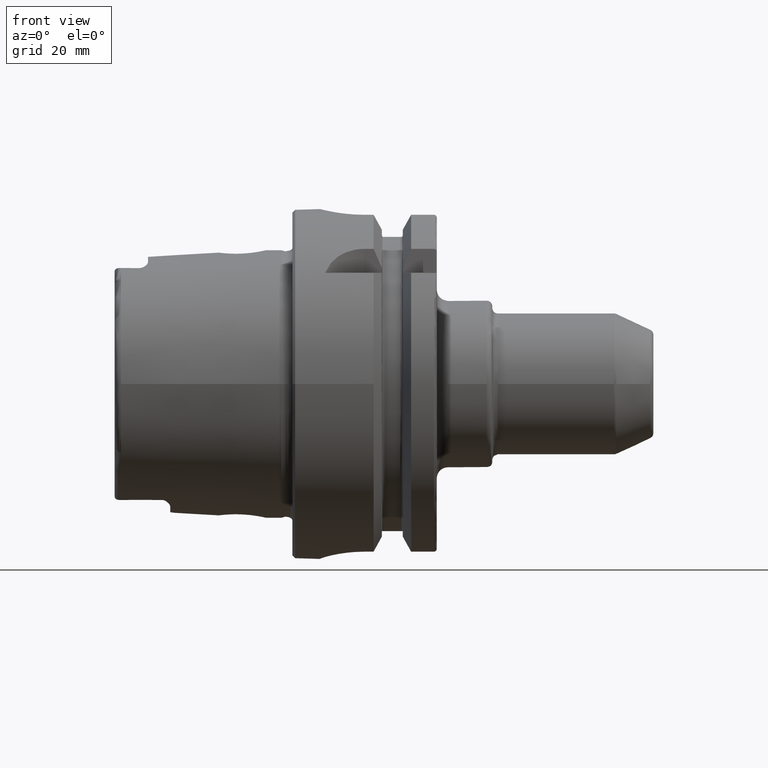
[diagram: clean part render]
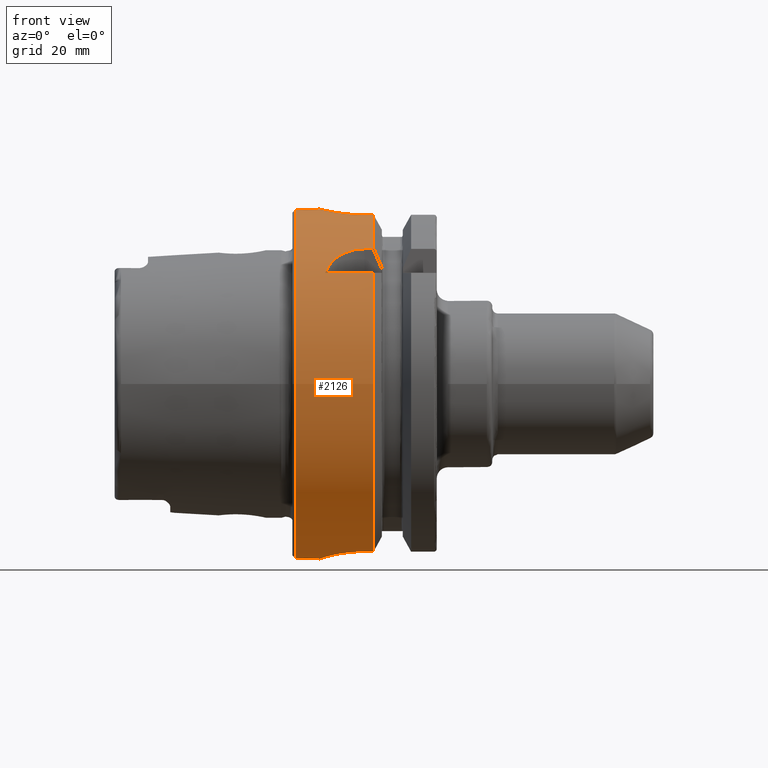
[diagram: same view with one face highlighted and labeled with its STEP entity id]
A machine part, front view. The second image highlights one B-rep face of the part: STEP entity #2126.
In plain terms, the highlighted cylindrical surface (bore or boss wall) has radius 31.5 mm, axis along (1, 0, 0).
Its self-contained STEP definition (entity closure, byte-faithful):
#66=B_SPLINE_CURVE_WITH_KNOTS('',3,(#4161,#4162,#4163,#4164,#4165,#4166,
#4167,#4168,#4169,#4170,#4171,#4172,#4173,#4174,#4175,#4176,#4177,#4178,
#4179,#4180,#4181,#4182,#4183,#4184,#4185,#4186),.UNSPECIFIED.,.F.,.F.,
(4,2,2,2,2,2,2,2,2,2,2,2,4),(0.,0.188688694287612,0.377377388575223,0.56606194688798,
0.754746505200737,0.943431063513494,1.13211562182625,1.32080431611386,1.50949301040147,
1.69818170468909,1.8868703989767,2.07555495728945,2.26423951560221),
 .UNSPECIFIED.);
#67=B_SPLINE_CURVE_WITH_KNOTS('',3,(#4187,#4188,#4189,#4190,#4191,#4192,
#4193,#4194,#4195,#4196),.UNSPECIFIED.,.F.,.F.,(4,2,2,2,4),(2.26423951560221,
2.45292407391497,2.64160863222773,2.83029732651534,3.01898602080295),
 .UNSPECIFIED.);
#68=B_SPLINE_CURVE_WITH_KNOTS('',3,(#4205,#4206,#4207,#4208,#4209,#4210,
#4211,#4212,#4213,#4214,#4215,#4216),.UNSPECIFIED.,.F.,.F.,(4,2,2,2,2,4),
(1.1085154204615,1.31979218709236,1.52798350480179,1.73617482251122,1.90421770126337,
2.07226058001552),.UNSPECIFIED.);
#71=B_SPLINE_CURVE_WITH_KNOTS('',3,(#4284,#4285,#4286,#4287,#4288,#4289,
#4290,#4291,#4292,#4293,#4294,#4295,#4296,#4297,#4298,#4299,#4300,#4301),
 .UNSPECIFIED.,.F.,.F.,(4,2,2,2,2,2,2,2,4),(0.,0.302805879979318,0.605611759958635,
0.908372461246501,1.21113316253437,1.51389386382223,1.8166545651101,2.11946044508942,
2.42226632506874),.UNSPECIFIED.);
#72=B_SPLINE_CURVE_WITH_KNOTS('',3,(#4309,#4310,#4311,#4312,#4313,#4314,
#4315,#4316,#4317,#4318),.UNSPECIFIED.,.F.,.F.,(4,2,2,2,4),(0.,0.30293011231322,
0.605860224626439,0.90976031392917,1.2136604032319),.UNSPECIFIED.);
#73=B_SPLINE_CURVE_WITH_KNOTS('',3,(#4322,#4323,#4324,#4325,#4326,#4327,
#4328,#4329,#4330,#4331),.UNSPECIFIED.,.F.,.F.,(4,2,2,2,4),(1.20927420824097,
1.5131742975437,1.81707438684643,2.12000449915965,2.42293461147287),
 .UNSPECIFIED.);
#108=FACE_BOUND('',#412,.T.);
#207=CYLINDRICAL_SURFACE('',#2341,31.5);
#276=FACE_OUTER_BOUND('',#411,.T.);
#411=EDGE_LOOP('',(#1669,#1670,#1671,#1672,#1673,#1674,#1675,#1676,#1677,
#1678,#1679,#1680,#1681,#1682,#1683,#1684,#1685,#1686));
#412=EDGE_LOOP('',(#1687,#1688));
#548=LINE('',#4247,#658);
#552=LINE('',#4277,#662);
#553=LINE('',#4282,#663);
#554=LINE('',#4303,#664);
#555=LINE('',#4307,#665);
#556=LINE('',#4333,#666);
#557=LINE('',#4337,#667);
#658=VECTOR('',#2774,10.);
#662=VECTOR('',#2782,10.);
#663=VECTOR('',#2787,10.);
#664=VECTOR('',#2788,10.);
#665=VECTOR('',#2791,10.);
#666=VECTOR('',#2794,10.);
#667=VECTOR('',#2797,31.5);
#777=CIRCLE('',#2342,31.5);
#778=CIRCLE('',#2343,31.5);
#779=CIRCLE('',#2344,31.5);
#780=CIRCLE('',#2345,31.5);
#781=CIRCLE('',#2346,31.5);
#782=CIRCLE('',#2347,31.5);
#963=VERTEX_POINT('',#4158);
#964=VERTEX_POINT('',#4160);
#966=VERTEX_POINT('',#4203);
#967=VERTEX_POINT('',#4204);
#975=VERTEX_POINT('',#4246);
#980=VERTEX_POINT('',#4273);
#981=VERTEX_POINT('',#4279);
#982=VERTEX_POINT('',#4281);
#983=VERTEX_POINT('',#4283);
#984=VERTEX_POINT('',#4302);
#985=VERTEX_POINT('',#4304);
#986=VERTEX_POINT('',#4306);
#987=VERTEX_POINT('',#4308);
#988=VERTEX_POINT('',#4319);
#989=VERTEX_POINT('',#4321);
#990=VERTEX_POINT('',#4332);
#991=VERTEX_POINT('',#4334);
#992=VERTEX_POINT('',#4336);
#1218=EDGE_CURVE('',#964,#963,#66,.T.);
#1219=EDGE_CURVE('',#963,#964,#67,.T.);
#1222=EDGE_CURVE('',#966,#967,#68,.T.);
#1232=EDGE_CURVE('',#975,#966,#548,.T.);
#1240=EDGE_CURVE('',#967,#980,#552,.T.);
#1241=EDGE_CURVE('',#981,#980,#777,.T.);
#1242=EDGE_CURVE('',#981,#982,#553,.T.);
#1243=EDGE_CURVE('',#982,#983,#71,.T.);
#1244=EDGE_CURVE('',#983,#984,#554,.T.);
#1245=EDGE_CURVE('',#985,#984,#778,.T.);
#1246=EDGE_CURVE('',#985,#986,#555,.T.);
#1247=EDGE_CURVE('',#986,#987,#72,.T.);
#1248=EDGE_CURVE('',#987,#988,#779,.T.);
#1249=EDGE_CURVE('',#988,#989,#73,.T.);
#1250=EDGE_CURVE('',#989,#990,#556,.T.);
#1251=EDGE_CURVE('',#991,#990,#780,.T.);
#1252=EDGE_CURVE('',#991,#992,#557,.T.);
#1253=EDGE_CURVE('',#992,#992,#781,.T.);
#1254=EDGE_CURVE('',#975,#991,#782,.T.);
#1669=ORIENTED_EDGE('',*,*,#1232,.T.);
#1670=ORIENTED_EDGE('',*,*,#1222,.T.);
#1671=ORIENTED_EDGE('',*,*,#1240,.T.);
#1672=ORIENTED_EDGE('',*,*,#1241,.F.);
#1673=ORIENTED_EDGE('',*,*,#1242,.T.);
#1674=ORIENTED_EDGE('',*,*,#1243,.T.);
#1675=ORIENTED_EDGE('',*,*,#1244,.T.);
#1676=ORIENTED_EDGE('',*,*,#1245,.F.);
#1677=ORIENTED_EDGE('',*,*,#1246,.T.);
#1678=ORIENTED_EDGE('',*,*,#1247,.T.);
#1679=ORIENTED_EDGE('',*,*,#1248,.T.);
#1680=ORIENTED_EDGE('',*,*,#1249,.T.);
#1681=ORIENTED_EDGE('',*,*,#1250,.T.);
#1682=ORIENTED_EDGE('',*,*,#1251,.F.);
#1683=ORIENTED_EDGE('',*,*,#1252,.T.);
#1684=ORIENTED_EDGE('',*,*,#1253,.T.);
#1685=ORIENTED_EDGE('',*,*,#1252,.F.);
#1686=ORIENTED_EDGE('',*,*,#1254,.F.);
#1687=ORIENTED_EDGE('',*,*,#1218,.T.);
#1688=ORIENTED_EDGE('',*,*,#1219,.T.);
#2126=ADVANCED_FACE('',(#276,#108),#207,.T.);
#2341=AXIS2_PLACEMENT_3D('',#4278,#2783,#2784);
#2342=AXIS2_PLACEMENT_3D('',#4280,#2785,#2786);
#2343=AXIS2_PLACEMENT_3D('',#4305,#2789,#2790);
#2344=AXIS2_PLACEMENT_3D('',#4320,#2792,#2793);
#2345=AXIS2_PLACEMENT_3D('',#4335,#2795,#2796);
#2346=AXIS2_PLACEMENT_3D('',#4338,#2798,#2799);
#2347=AXIS2_PLACEMENT_3D('',#4339,#2800,#2801);
#2774=DIRECTION('',(-1.,0.,0.));
#2782=DIRECTION('',(1.,0.,0.));
#2783=DIRECTION('center_axis',(1.,0.,0.));
#2784=DIRECTION('ref_axis',(0.,1.,0.));
#2785=DIRECTION('center_axis',(1.,0.,0.));
#2786=DIRECTION('ref_axis',(0.,0.,-1.));
#2787=DIRECTION('',(-1.,0.,0.));
#2788=DIRECTION('',(1.,0.,0.));
#2789=DIRECTION('center_axis',(1.,0.,0.));
#2790=DIRECTION('ref_axis',(0.,0.,-1.));
#2791=DIRECTION('',(-1.,0.,0.));
#2792=DIRECTION('center_axis',(-1.,0.,0.));
#2793=DIRECTION('ref_axis',(0.,1.,0.));
#2794=DIRECTION('',(1.,0.,0.));
#2795=DIRECTION('center_axis',(1.,0.,0.));
#2796=DIRECTION('ref_axis',(0.,0.,-1.));
#2797=DIRECTION('',(-1.,0.,0.));
#2798=DIRECTION('center_axis',(1.,0.,0.));
#2799=DIRECTION('ref_axis',(0.,0.,-1.));
#2800=DIRECTION('center_axis',(1.,0.,0.));
#2801=DIRECTION('ref_axis',(0.,0.,-1.));
#4158=CARTESIAN_POINT('',(12.,31.5,-6.12323399573677E-16));
#4160=CARTESIAN_POINT('',(7.,31.100643080168,5.));
#4161=CARTESIAN_POINT('Ctrl Pts',(7.,31.100643080168,5.));
#4162=CARTESIAN_POINT('Ctrl Pts',(6.37103768570796,31.100643080168,5.));
#4163=CARTESIAN_POINT('Ctrl Pts',(5.70089281579202,31.1216953112949,4.87408354368814));
#4164=CARTESIAN_POINT('Ctrl Pts',(4.46931934300962,31.1973810209855,4.36348784122736));
#4165=CARTESIAN_POINT('Ctrl Pts',(3.90779781350673,31.2508828501623,3.97886562537221));
#4166=CARTESIAN_POINT('Ctrl Pts',(3.021144092268,31.3510329557602,3.09221190413348));
#4167=CARTESIAN_POINT('Ctrl Pts',(2.63651425348544,31.4042391414288,2.5306861925578));
#4168=CARTESIAN_POINT('Ctrl Pts',(2.12591301120586,31.4792463697936,1.29909839144709));
#4169=CARTESIAN_POINT('Ctrl Pts',(2.,31.5,0.62894852770919));
#4170=CARTESIAN_POINT('Ctrl Pts',(2.,31.5,-0.62894852770919));
#4171=CARTESIAN_POINT('Ctrl Pts',(2.12591301120586,31.4792463697936,-1.29909839144709));
#4172=CARTESIAN_POINT('Ctrl Pts',(2.63651425348544,31.4042391414288,-2.5306861925578));
#4173=CARTESIAN_POINT('Ctrl Pts',(3.021144092268,31.3510329557602,-3.09221190413348));
#4174=CARTESIAN_POINT('Ctrl Pts',(3.90779781350673,31.2508828501623,-3.97886562537221));
#4175=CARTESIAN_POINT('Ctrl Pts',(4.46931934300962,31.1973810209855,-4.36348784122736));
#4176=CARTESIAN_POINT('Ctrl Pts',(5.70089281579202,31.1216953112949,-4.87408354368814));
#4177=CARTESIAN_POINT('Ctrl Pts',(6.37103768570796,31.100643080168,-5.));
#4178=CARTESIAN_POINT('Ctrl Pts',(7.62896231429204,31.100643080168,-5.));
#4179=CARTESIAN_POINT('Ctrl Pts',(8.29910718420798,31.1216953112949,-4.87408354368814));
#4180=CARTESIAN_POINT('Ctrl Pts',(9.53068065699038,31.1973810209855,-4.36348784122736));
#4181=CARTESIAN_POINT('Ctrl Pts',(10.0922021864933,31.2508828501623,-3.97886562537221));
#4182=CARTESIAN_POINT('Ctrl Pts',(10.978855907732,31.3510329557602,-3.09221190413348));
#4183=CARTESIAN_POINT('Ctrl Pts',(11.3634857465146,31.4042391414288,-2.53068619255779));
#4184=CARTESIAN_POINT('Ctrl Pts',(11.8740869887941,31.4792463697936,-1.29909839144708));
#4185=CARTESIAN_POINT('Ctrl Pts',(12.,31.5,-0.62894852770919));
#4186=CARTESIAN_POINT('Ctrl Pts',(12.,31.5,-4.16333634234434E-16));
#4187=CARTESIAN_POINT('Ctrl Pts',(12.,31.5,-1.11022302462516E-15));
#4188=CARTESIAN_POINT('Ctrl Pts',(12.,31.5,0.628948527709188));
#4189=CARTESIAN_POINT('Ctrl Pts',(11.8740869887941,31.4792463697936,1.29909839144708));
#4190=CARTESIAN_POINT('Ctrl Pts',(11.3634857465146,31.4042391414288,2.53068619255779));
#4191=CARTESIAN_POINT('Ctrl Pts',(10.978855907732,31.3510329557602,3.09221190413348));
#4192=CARTESIAN_POINT('Ctrl Pts',(10.0922021864933,31.2508828501623,3.97886562537221));
#4193=CARTESIAN_POINT('Ctrl Pts',(9.53068065699038,31.1973810209855,4.36348784122736));
#4194=CARTESIAN_POINT('Ctrl Pts',(8.29910718420798,31.1216953112949,4.87408354368814));
#4195=CARTESIAN_POINT('Ctrl Pts',(7.62896231429204,31.100643080168,5.));
#4196=CARTESIAN_POINT('Ctrl Pts',(7.,31.100643080168,5.));
#4203=CARTESIAN_POINT('',(5.88828609634419,-24.3361870472759,20.));
#4204=CARTESIAN_POINT('',(13.,-20.,24.3361870472759));
#4205=CARTESIAN_POINT('Ctrl Pts',(5.88828609634419,-24.3361870472759,20.));
#4206=CARTESIAN_POINT('Ctrl Pts',(6.11069532820048,-23.9044753723342,20.5253108035937));
#4207=CARTESIAN_POINT('Ctrl Pts',(6.38325999044306,-23.4713523250807,21.0173865932788));
#4208=CARTESIAN_POINT('Ctrl Pts',(7.044898076458,-22.6317364276543,21.9186738868096));
#4209=CARTESIAN_POINT('Ctrl Pts',(7.46714468561685,-22.1861072682036,22.3682920878559));
#4210=CARTESIAN_POINT('Ctrl Pts',(8.46725531403812,-21.3767026700071,23.143042657319));
#4211=CARTESIAN_POINT('Ctrl Pts',(9.04646427720221,-21.0147449478223,23.4683362269255));
#4212=CARTESIAN_POINT('Ctrl Pts',(10.1145001432702,-20.5200081116516,23.9011603796022));
#4213=CARTESIAN_POINT('Ctrl Pts',(10.670823971716,-20.3234249831704,24.0673462447194));
#4214=CARTESIAN_POINT('Ctrl Pts',(11.8334528721306,-20.063121855676,24.2847667849476));
#4215=CARTESIAN_POINT('Ctrl Pts',(12.4398570708262,-20.,24.3361870472759));
#4216=CARTESIAN_POINT('Ctrl Pts',(13.,-20.,24.3361870472759));
#4246=CARTESIAN_POINT('',(14.6225009252407,-24.3361870472759,20.));
#4247=CARTESIAN_POINT('',(7.56125046262034,-24.3361870472759,20.));
#4273=CARTESIAN_POINT('',(14.6225009252407,-20.,24.3361870472759));
#4277=CARTESIAN_POINT('',(7.56125046262035,-20.,24.3361870472759));
#4278=CARTESIAN_POINT('Origin',(7.56125046262034,0.,0.));
#4279=CARTESIAN_POINT('',(14.6225009252407,-8.,30.4671954731642));
#4280=CARTESIAN_POINT('Origin',(14.6225009252407,0.,0.));
#4281=CARTESIAN_POINT('',(13.,-8.,30.4671954731642));
#4282=CARTESIAN_POINT('',(7.56125046262034,-8.,30.4671954731642));
#4283=CARTESIAN_POINT('',(13.,8.,30.4671954731642));
#4284=CARTESIAN_POINT('Ctrl Pts',(13.,-8.,30.4671954731643));
#4285=CARTESIAN_POINT('Ctrl Pts',(11.9906470667356,-8.,30.4671954731643));
#4286=CARTESIAN_POINT('Ctrl Pts',(10.9172075930168,-7.79737202490167,30.5225803085525));
#4287=CARTESIAN_POINT('Ctrl Pts',(8.94758399331801,-6.97961067526075,30.719895002943));
#4288=CARTESIAN_POINT('Ctrl Pts',(8.05099322370438,-6.36470172268915,30.8586830127239));
#4289=CARTESIAN_POINT('Ctrl Pts',(6.63540388828045,-4.94911238726521,31.1170994373341));
#4290=CARTESIAN_POINT('Ctrl Pts',(6.02041263015313,-4.05247770930662,31.2539072689014));
#4291=CARTESIAN_POINT('Ctrl Pts',(5.20259114887399,-2.08269813865027,31.4466478906396));
#4292=CARTESIAN_POINT('Ctrl Pts',(5.,-1.00920233762622,31.5));
#4293=CARTESIAN_POINT('Ctrl Pts',(5.,1.00920233762622,31.5));
#4294=CARTESIAN_POINT('Ctrl Pts',(5.20259114887399,2.08269813865027,31.4466478906396));
#4295=CARTESIAN_POINT('Ctrl Pts',(6.02041263015313,4.05247770930662,31.2539072689014));
#4296=CARTESIAN_POINT('Ctrl Pts',(6.63540388828045,4.94911238726521,31.1170994373341));
#4297=CARTESIAN_POINT('Ctrl Pts',(8.05099322370439,6.36470172268915,30.8586830127239));
#4298=CARTESIAN_POINT('Ctrl Pts',(8.94758399331801,6.97961067526075,30.719895002943));
#4299=CARTESIAN_POINT('Ctrl Pts',(10.9172075930168,7.79737202490167,30.5225803085525));
#4300=CARTESIAN_POINT('Ctrl Pts',(11.9906470667356,8.,30.4671954731643));
#4301=CARTESIAN_POINT('Ctrl Pts',(13.,8.,30.4671954731643));
#4302=CARTESIAN_POINT('',(14.6225009252407,8.,30.4671954731642));
#4303=CARTESIAN_POINT('',(7.56125046262035,8.,30.4671954731642));
#4304=CARTESIAN_POINT('',(14.6225009252407,9.,-30.1869176962472));
#4305=CARTESIAN_POINT('Origin',(14.6225009252407,0.,0.));
#4306=CARTESIAN_POINT('',(13.,9.00000000000001,-30.1869176962472));
#4307=CARTESIAN_POINT('',(7.56125046262034,9.00000000000001,-30.1869176962472));
#4308=CARTESIAN_POINT('',(5.,1.,-31.4841229828623));
#4309=CARTESIAN_POINT('Ctrl Pts',(13.,9.00000000000001,-30.1869176962472));
#4310=CARTESIAN_POINT('Ctrl Pts',(11.9902329589559,9.00000000000001,-30.1869176962472));
#4311=CARTESIAN_POINT('Ctrl Pts',(10.9171740660538,8.79719825889175,-30.2496070227108));
#4312=CARTESIAN_POINT('Ctrl Pts',(8.9496642215883,7.98063403850822,-30.4752177477269));
#4313=CARTESIAN_POINT('Ctrl Pts',(8.05472493283182,7.3671500962837,-30.6348764237341));
#4314=CARTESIAN_POINT('Ctrl Pts',(6.63955745341061,5.95454409907419,-30.9405445582004));
#4315=CARTESIAN_POINT('Ctrl Pts',(6.02370102555041,5.0583660804473,-31.1070804719497));
#4316=CARTESIAN_POINT('Ctrl Pts',(5.2037733306458,3.08756640398172,-31.3640631381934));
#4317=CARTESIAN_POINT('Ctrl Pts',(5.,2.01248971281588,-31.4519642432536));
#4318=CARTESIAN_POINT('Ctrl Pts',(5.,1.00000000000001,-31.4841229828623));
#4319=CARTESIAN_POINT('',(5.,-0.999999999999999,-31.4841229828623));
#4320=CARTESIAN_POINT('Origin',(5.,0.,0.));
#4321=CARTESIAN_POINT('',(13.,-9.,-30.1869176962472));
#4322=CARTESIAN_POINT('Ctrl Pts',(5.,-0.999999999999997,-31.4841229828623));
#4323=CARTESIAN_POINT('Ctrl Pts',(5.,-2.01248971281587,-31.4519642432536));
#4324=CARTESIAN_POINT('Ctrl Pts',(5.2037733306458,-3.08756640398171,-31.3640631381934));
#4325=CARTESIAN_POINT('Ctrl Pts',(6.02370102555041,-5.05836608044729,-31.1070804719497));
#4326=CARTESIAN_POINT('Ctrl Pts',(6.63955745341061,-5.95454409907418,-30.9405445582004));
#4327=CARTESIAN_POINT('Ctrl Pts',(8.05472493283182,-7.36715009628369,-30.6348764237341));
#4328=CARTESIAN_POINT('Ctrl Pts',(8.9496642215883,-7.98063403850821,-30.4752177477269));
#4329=CARTESIAN_POINT('Ctrl Pts',(10.9171740660538,-8.79719825889174,-30.2496070227108));
#4330=CARTESIAN_POINT('Ctrl Pts',(11.9902329589559,-9.,-30.1869176962472));
#4331=CARTESIAN_POINT('Ctrl Pts',(13.,-9.,-30.1869176962472));
#4332=CARTESIAN_POINT('',(14.6225009252407,-9.,-30.1869176962472));
#4333=CARTESIAN_POINT('',(7.56125046262035,-8.99999999999999,-30.1869176962472));
#4334=CARTESIAN_POINT('',(14.6225009252407,-31.5,-3.85763741731416E-15));
#4335=CARTESIAN_POINT('Origin',(14.6225009252407,0.,0.));
#4336=CARTESIAN_POINT('',(0.5,-31.5,-3.85763741731416E-15));
#4337=CARTESIAN_POINT('',(7.56125046262034,-31.5,-3.85763741731416E-15));
#4338=CARTESIAN_POINT('Origin',(0.5,0.,0.));
#4339=CARTESIAN_POINT('Origin',(14.6225009252407,0.,0.));